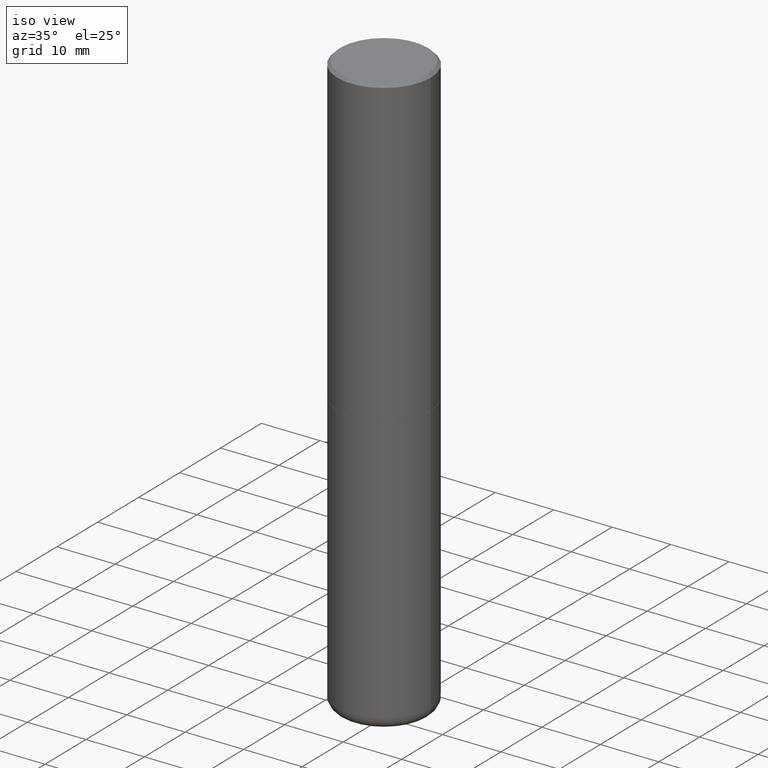
[diagram: clean part render]
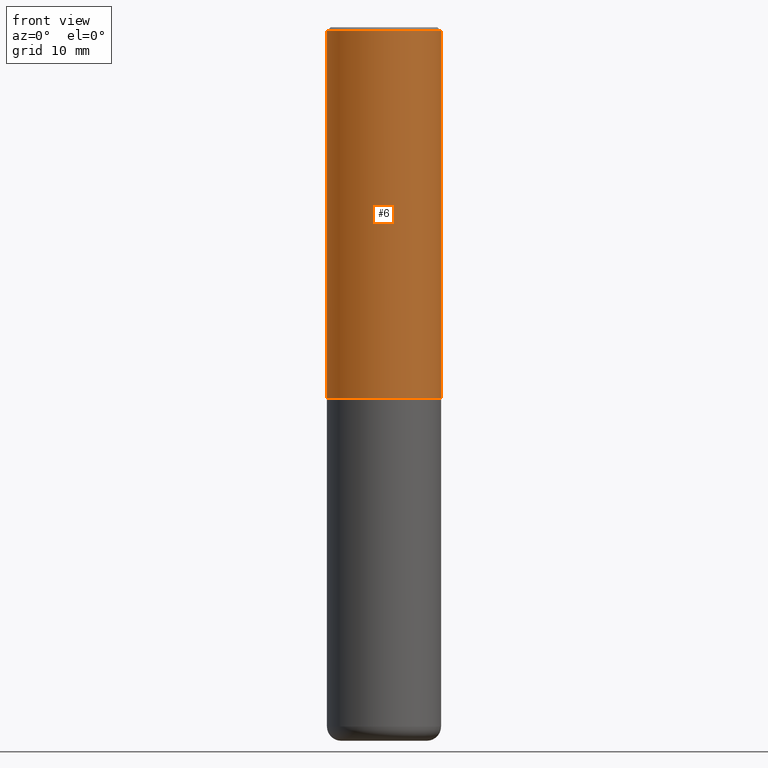
[diagram: tour spotlight — one face highlighted and labeled with its STEP entity id]
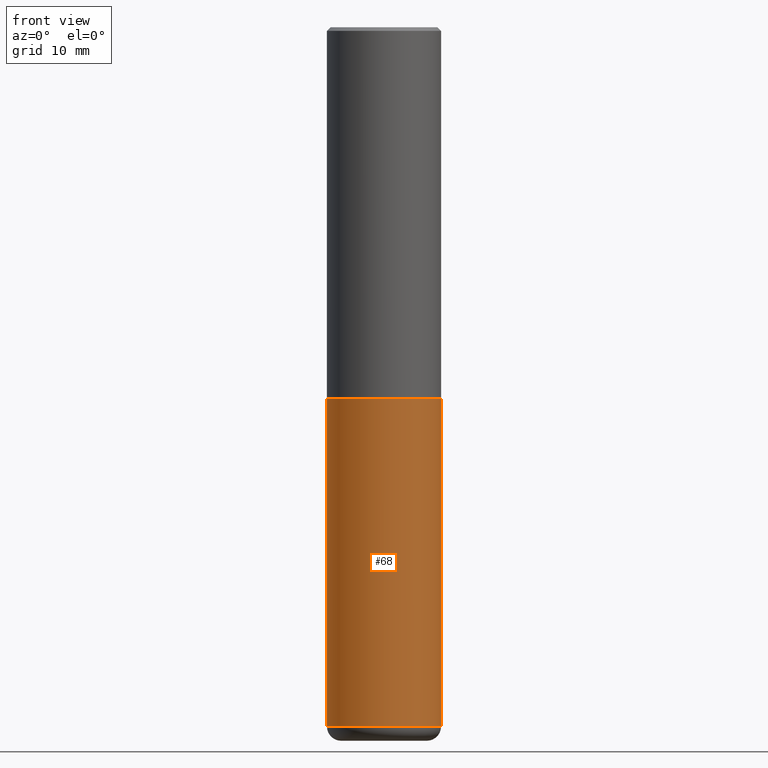
[diagram: tour spotlight — one face highlighted and labeled with its STEP entity id]
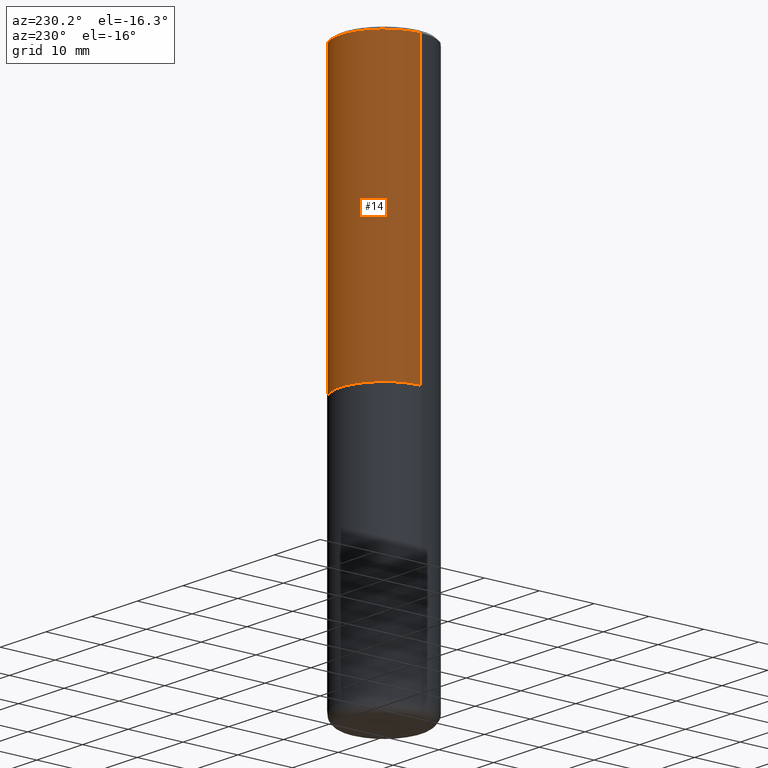
[diagram: tour spotlight — one face highlighted and labeled with its STEP entity id]
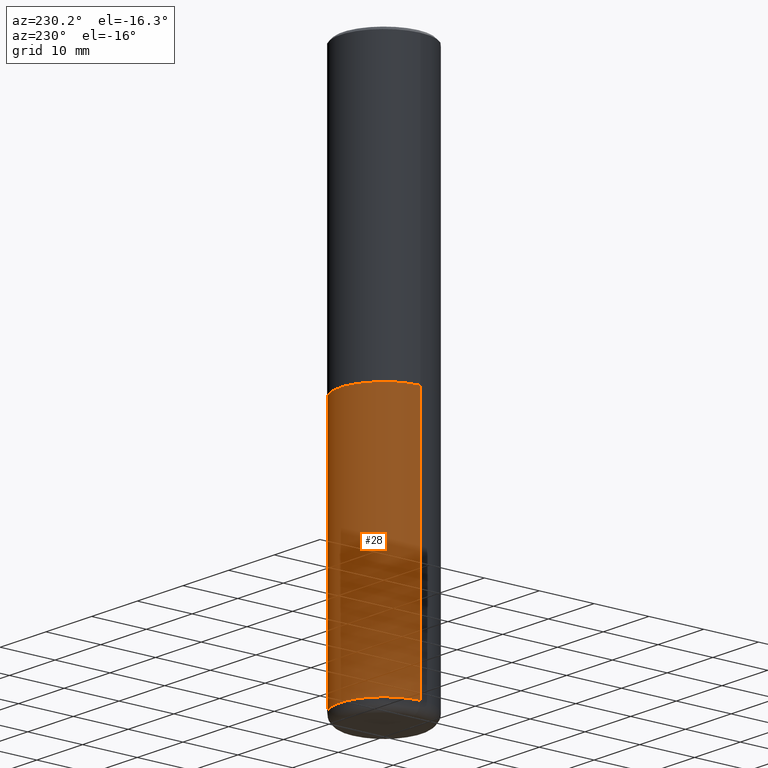
[diagram: tour spotlight — one face highlighted and labeled with its STEP entity id]
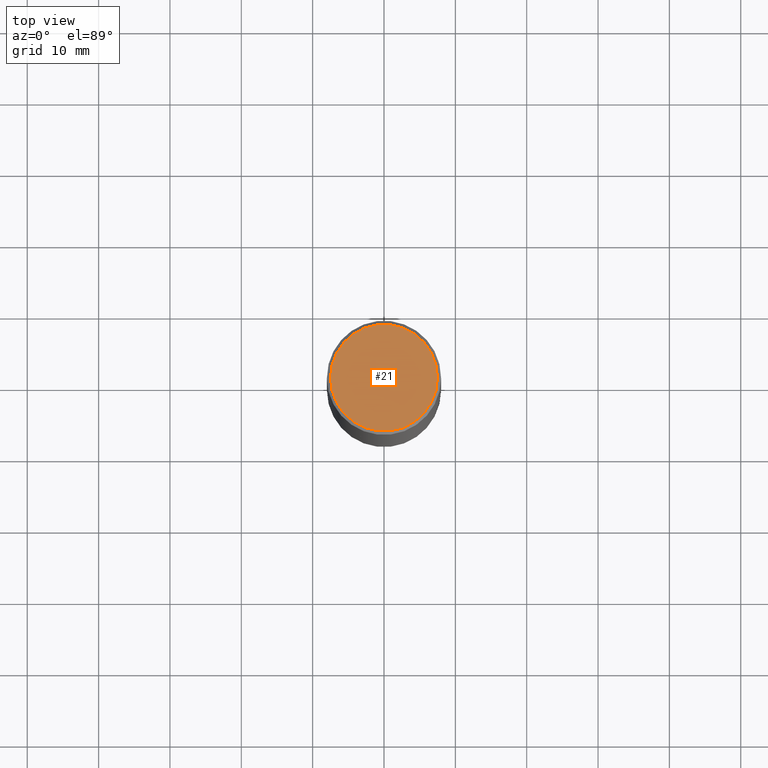
[diagram: tour spotlight — one face highlighted and labeled with its STEP entity id]
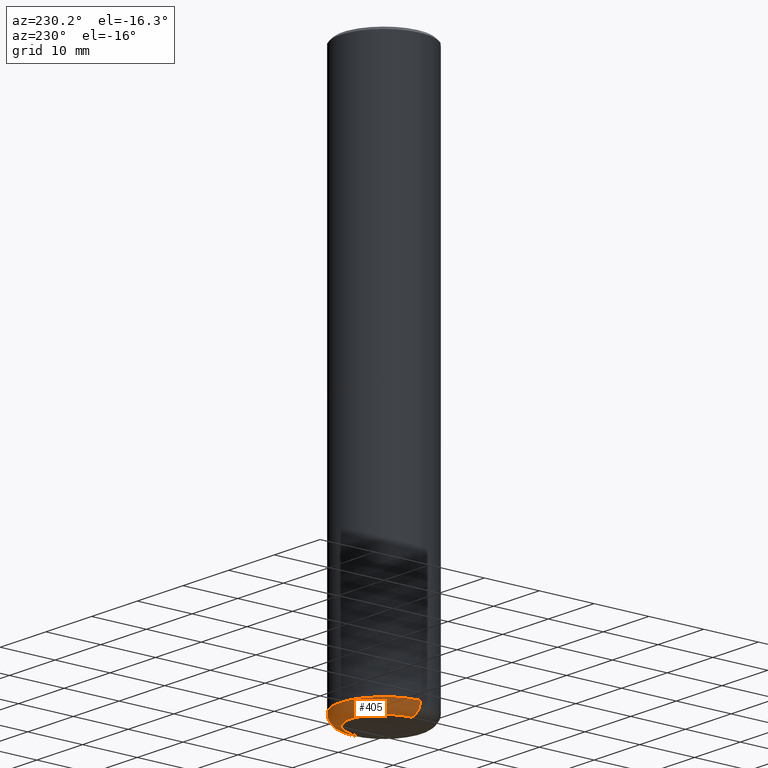
[diagram: tour spotlight — one face highlighted and labeled with its STEP entity id]
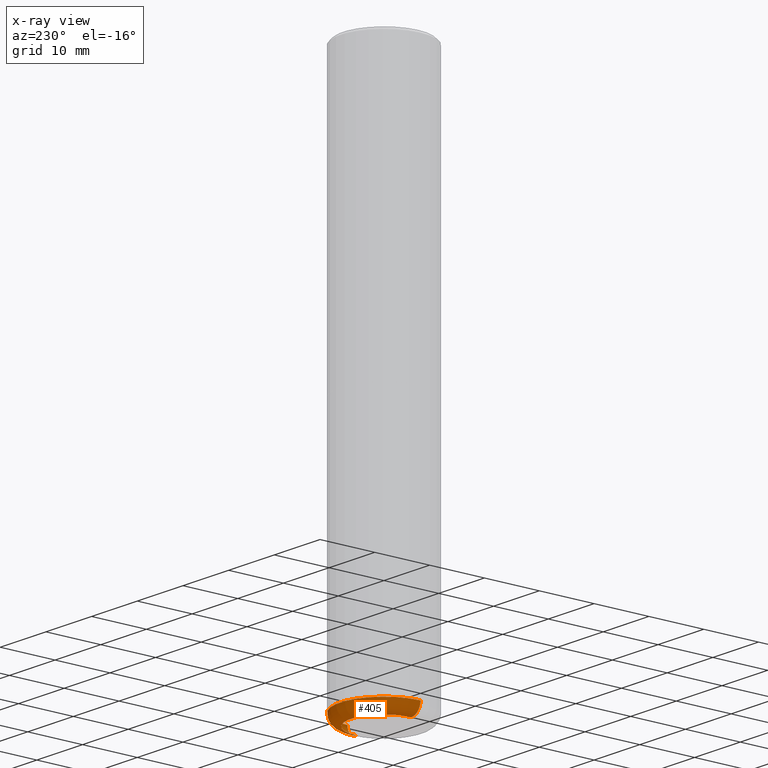
[diagram: x-ray of the same camera — body ghosted, this tour face saturated]
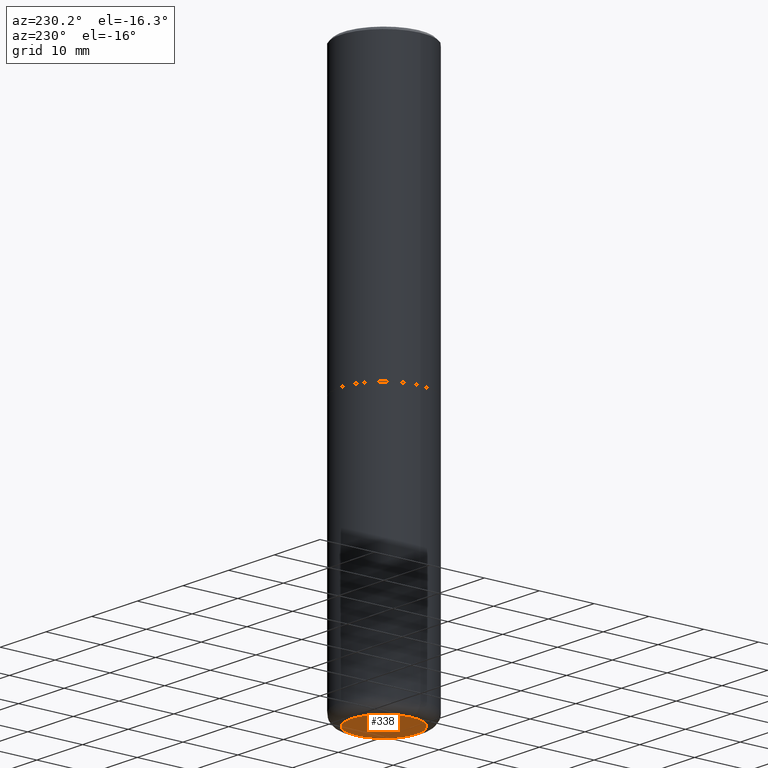
[diagram: tour spotlight — one face highlighted and labeled with its STEP entity id]
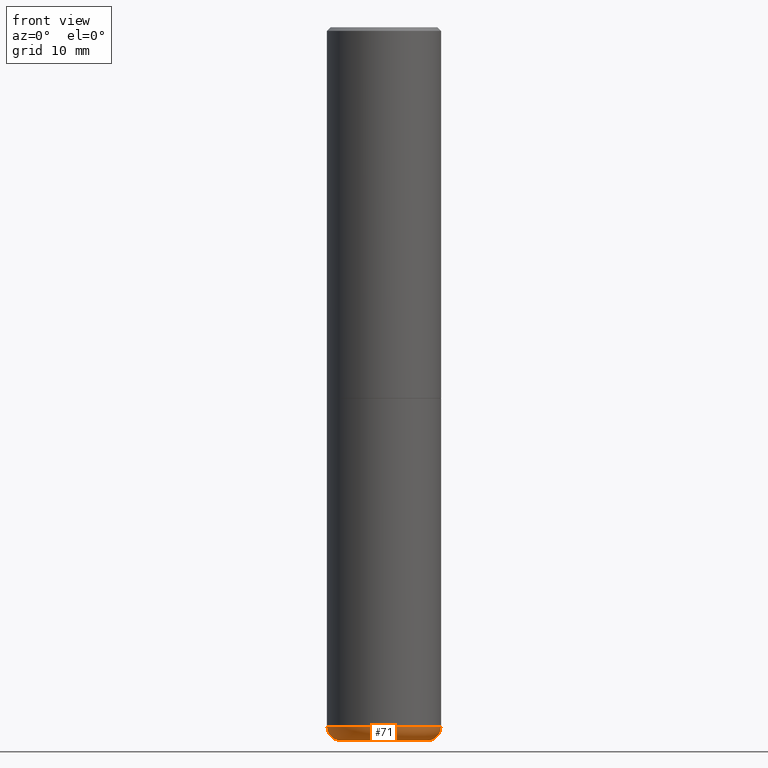
[diagram: tour spotlight — one face highlighted and labeled with its STEP entity id]
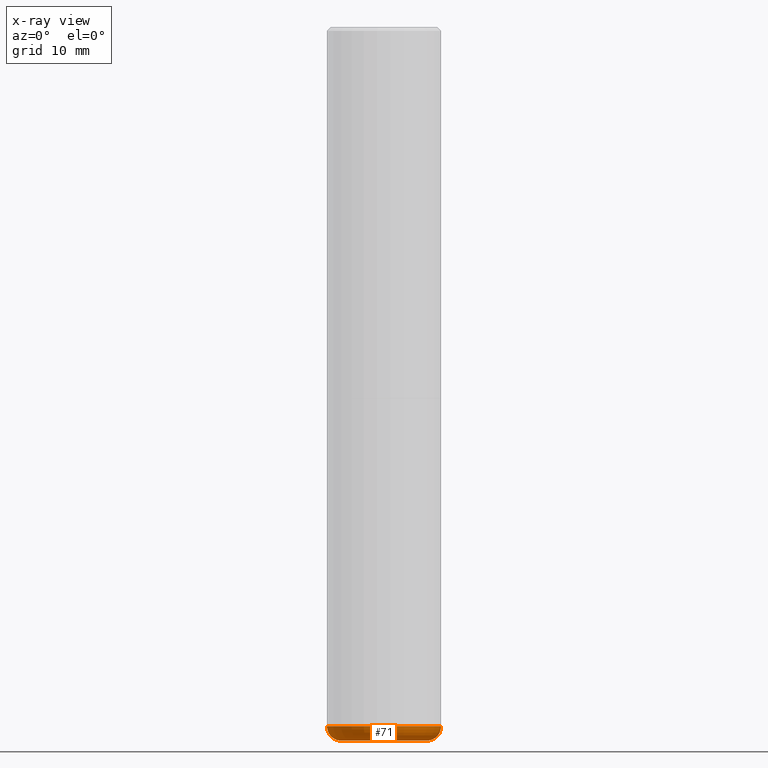
[diagram: x-ray of the same camera — body ghosted, this tour face saturated]
A machine part: a face-by-face anatomy tour. The part has 14 B-rep faces; the first image is the clean iso view, then the 8 largest visible faces are spotlighted one at a time (largest first), each with its STEP entity span.

Face 1 — front view, entity #6. In plain terms, the highlighted cylindrical surface (partial cylindrical patch) has radius 7.9997 mm, axis along (-0, 0, 1).
Definition (entity closure, byte-faithful):
#6 = ADVANCED_FACE ( 'NONE', ( #414 ), #221, .T. ) ;
#29 = CARTESIAN_POINT ( 'NONE',  ( 5.003918271216025517E-29, -7.144269115540843617E-15, -2.046199999999999797 ) ) ;
#32 = VERTEX_POINT ( 'NONE', #225 ) ;
#40 = DIRECTION ( 'NONE',  ( -2.445468806185136597E-29, 3.491481338843145583E-15, 1.000000000000000000 ) ) ;
#47 = CARTESIAN_POINT ( 'NONE',  ( -0.3149500000000001743, 2.237854346276436774E-15, -1.549218606675783237E-29 ) ) ;
#54 = VECTOR ( 'NONE', #357, 39.37007874015748143 ) ;
#60 = AXIS2_PLACEMENT_3D ( 'NONE', #93, #247, #89 ) ;
#62 = CARTESIAN_POINT ( 'NONE',  ( 0.3149499999999999522, -2.230543471175006661E-15, -0.02000000000000006981 ) ) ;
#79 = EDGE_CURVE ( 'NONE', #133, #217, #260, .T. ) ;
#89 = DIRECTION ( 'NONE',  ( 1.000000000000000000, -6.982962677686265922E-15, 4.876176775795935232E-29 ) ) ;
#93 = CARTESIAN_POINT ( 'NONE',  ( 0.000000000000000000, 0.000000000000000000, 0.000000000000000000 ) ) ;
#102 = VECTOR ( 'NONE', #359, 39.37007874015748143 ) ;
#106 = CARTESIAN_POINT ( 'NONE',  ( -0.3149499999999999522, 2.129454468560426178E-15, -0.02000000000000006981 ) ) ;
#133 = VERTEX_POINT ( 'NONE', #168 ) ;
#136 = CARTESIAN_POINT ( 'NONE',  ( 0.3149500000000001743, -2.199284095337290660E-15, 1.535751875536930690E-29 ) ) ;
#147 = CIRCLE ( 'NONE', #371, 0.3149499999999999522 ) ;
#149 = EDGE_CURVE ( 'NONE', #32, #200, #327, .T. ) ;
#168 = CARTESIAN_POINT ( 'NONE',  ( 0.3149500000000002853, -9.343553210878135066E-15, -2.046199999999999797 ) ) ;
#200 = VERTEX_POINT ( 'NONE', #106 ) ;
#207 = ORIENTED_EDGE ( 'NONE', *, *, #273, .T. ) ;
#209 = DIRECTION ( 'NONE',  ( 1.000000000000000000, -6.982962677686266711E-15, 0.000000000000000000 ) ) ;
#217 = VERTEX_POINT ( 'NONE', #62 ) ;
#221 = CYLINDRICAL_SURFACE ( 'NONE', #60, 0.3149500000000001743 ) ;
#223 = ORIENTED_EDGE ( 'NONE', *, *, #79, .T. ) ;
#225 = CARTESIAN_POINT ( 'NONE',  ( -0.3149500000000002853, -1.369195024882414317E-15, -2.046199999999999797 ) ) ;
#247 = DIRECTION ( 'NONE',  ( -2.445468806185136597E-29, 3.491481338843145583E-15, 1.000000000000000000 ) ) ;
#260 = LINE ( 'NONE', #136, #102 ) ;
#273 = EDGE_CURVE ( 'NONE', #32, #133, #407, .T. ) ;
#284 = ORIENTED_EDGE ( 'NONE', *, *, #149, .F. ) ;
#319 = DIRECTION ( 'NONE',  ( 1.000000000000000000, -6.982962677686267499E-15, 0.000000000000000000 ) ) ;
#327 = LINE ( 'NONE', #47, #54 ) ;
#333 = DIRECTION ( 'NONE',  ( -2.445468806185136597E-29, 3.491481338843145583E-15, 1.000000000000000000 ) ) ;
#337 = AXIS2_PLACEMENT_3D ( 'NONE', #29, #40, #319 ) ;
#357 = DIRECTION ( 'NONE',  ( -2.445468806185136877E-29, 3.491481338843145188E-15, 1.000000000000000000 ) ) ;
#359 = DIRECTION ( 'NONE',  ( -2.445468806185136877E-29, 3.491481338843145188E-15, 1.000000000000000000 ) ) ;
#360 = CARTESIAN_POINT ( 'NONE',  ( 4.890937612370289799E-31, -6.982962677686315028E-17, -0.02000000000000006981 ) ) ;
#369 = EDGE_LOOP ( 'NONE', ( #284, #207, #223, #375 ) ) ;
#371 = AXIS2_PLACEMENT_3D ( 'NONE', #360, #333, #209 ) ;
#375 = ORIENTED_EDGE ( 'NONE', *, *, #412, .F. ) ;
#407 = CIRCLE ( 'NONE', #337, 0.3149500000000002853 ) ;
#412 = EDGE_CURVE ( 'NONE', #200, #217, #147, .T. ) ;
#414 = FACE_OUTER_BOUND ( 'NONE', #369, .T. ) ;

Face 2 — front view, entity #68. In plain terms, the highlighted cylindrical surface (partial cylindrical patch) has radius 7.9997 mm, axis along (-0, 0, 1).
Definition (entity closure, byte-faithful):
#4 = CARTESIAN_POINT ( 'NONE',  ( 0.3149500000000000077, -2.199284095337289871E-15, 1.535751875536930130E-29 ) ) ;
#13 = DIRECTION ( 'NONE',  ( 1.000000000000000000, -6.982962677686266711E-15, 4.876176775795936353E-29 ) ) ;
#30 = ORIENTED_EDGE ( 'NONE', *, *, #205, .F. ) ;
#38 = CARTESIAN_POINT ( 'NONE',  ( 0.3149500000000000077, -9.347044692216978073E-15, -2.047199999999999687 ) ) ;
#43 = DIRECTION ( 'NONE',  ( 1.000000000000000000, -6.982962677686269866E-15, 0.000000000000000000 ) ) ;
#68 = ADVANCED_FACE ( 'NONE', ( #201 ), #143, .T. ) ;
#91 = EDGE_CURVE ( 'NONE', #408, #154, #387, .T. ) ;
#108 = ORIENTED_EDGE ( 'NONE', *, *, #91, .F. ) ;
#116 = VECTOR ( 'NONE', #341, 39.37007874015748143 ) ;
#143 = CYLINDRICAL_SURFACE ( 'NONE', #334, 0.3149500000000000077 ) ;
#154 = VERTEX_POINT ( 'NONE', #38 ) ;
#156 = CARTESIAN_POINT ( 'NONE',  ( -0.3149500000000000077, 2.237854346276435590E-15, -1.549218606675782676E-29 ) ) ;
#167 = DIRECTION ( 'NONE',  ( -2.445468806185136877E-29, 3.491481338843145188E-15, 1.000000000000000000 ) ) ;
#171 = CARTESIAN_POINT ( 'NONE',  ( 9.435352294904112142E-29, -1.347118244965850850E-14, -3.858300000000000285 ) ) ;
#172 = EDGE_CURVE ( 'NONE', #255, #214, #184, .T. ) ;
#175 = CARTESIAN_POINT ( 'NONE',  ( 0.000000000000000000, 0.000000000000000000, 0.000000000000000000 ) ) ;
#183 = ORIENTED_EDGE ( 'NONE', *, *, #172, .T. ) ;
#184 = CIRCLE ( 'NONE', #302, 0.3149500000000000077 ) ;
#201 = FACE_OUTER_BOUND ( 'NONE', #275, .T. ) ;
#205 = EDGE_CURVE ( 'NONE', #255, #408, #283, .T. ) ;
#214 = VERTEX_POINT ( 'NONE', #277 ) ;
#239 = VECTOR ( 'NONE', #167, 39.37007874015748143 ) ;
#243 = CARTESIAN_POINT ( 'NONE',  ( -0.3149500000000001743, -1.123332810338207409E-14, -3.858300000000000285 ) ) ;
#255 = VERTEX_POINT ( 'NONE', #243 ) ;
#262 = DIRECTION ( 'NONE',  ( -2.445468806185136597E-29, 3.491481338843145583E-15, 1.000000000000000000 ) ) ;
#269 = EDGE_CURVE ( 'NONE', #214, #154, #353, .T. ) ;
#275 = EDGE_LOOP ( 'NONE', ( #30, #183, #356, #108 ) ) ;
#277 = CARTESIAN_POINT ( 'NONE',  ( 0.3149500000000001743, -1.567046654499579837E-14, -3.858300000000000285 ) ) ;
#283 = LINE ( 'NONE', #156, #116 ) ;
#289 = DIRECTION ( 'NONE',  ( -2.445468806185136597E-29, 3.491481338843145583E-15, 1.000000000000000000 ) ) ;
#293 = DIRECTION ( 'NONE',  ( -2.445468806185136597E-29, 3.491481338843145583E-15, 1.000000000000000000 ) ) ;
#298 = AXIS2_PLACEMENT_3D ( 'NONE', #323, #262, #43 ) ;
#302 = AXIS2_PLACEMENT_3D ( 'NONE', #171, #289, #392 ) ;
#323 = CARTESIAN_POINT ( 'NONE',  ( 5.006363740022211120E-29, -7.147760596879686624E-15, -2.047199999999999687 ) ) ;
#334 = AXIS2_PLACEMENT_3D ( 'NONE', #175, #293, #13 ) ;
#341 = DIRECTION ( 'NONE',  ( -2.445468806185136877E-29, 3.491481338843145188E-15, 1.000000000000000000 ) ) ;
#353 = LINE ( 'NONE', #4, #239 ) ;
#356 = ORIENTED_EDGE ( 'NONE', *, *, #269, .T. ) ;
#387 = CIRCLE ( 'NONE', #298, 0.3149500000000000077 ) ;
#392 = DIRECTION ( 'NONE',  ( 1.000000000000000000, -6.982962677686263555E-15, 0.000000000000000000 ) ) ;
#408 = VERTEX_POINT ( 'NONE', #409 ) ;
#409 = CARTESIAN_POINT ( 'NONE',  ( -0.3149500000000000077, -8.071617176992661576E-15, -2.047199999999999687 ) ) ;

Face 3 — auxiliary view, entity #14. In plain terms, the highlighted cylindrical surface (partial cylindrical patch) has radius 7.9997 mm, axis along (-0, 0, 1).
Definition (entity closure, byte-faithful):
#10 = DIRECTION ( 'NONE',  ( -2.445468806185136597E-29, 3.491481338843145583E-15, 1.000000000000000000 ) ) ;
#14 = ADVANCED_FACE ( 'NONE', ( #158 ), #312, .T. ) ;
#23 = ORIENTED_EDGE ( 'NONE', *, *, #146, .T. ) ;
#25 = CIRCLE ( 'NONE', #173, 0.3149500000000002853 ) ;
#32 = VERTEX_POINT ( 'NONE', #225 ) ;
#47 = CARTESIAN_POINT ( 'NONE',  ( -0.3149500000000001743, 2.237854346276436774E-15, -1.549218606675783237E-29 ) ) ;
#54 = VECTOR ( 'NONE', #357, 39.37007874015748143 ) ;
#55 = EDGE_CURVE ( 'NONE', #217, #200, #257, .T. ) ;
#58 = EDGE_LOOP ( 'NONE', ( #23, #364, #63, #340 ) ) ;
#62 = CARTESIAN_POINT ( 'NONE',  ( 0.3149499999999999522, -2.230543471175006661E-15, -0.02000000000000006981 ) ) ;
#63 = ORIENTED_EDGE ( 'NONE', *, *, #55, .F. ) ;
#75 = DIRECTION ( 'NONE',  ( -2.445468806185136597E-29, 3.491481338843145583E-15, 1.000000000000000000 ) ) ;
#79 = EDGE_CURVE ( 'NONE', #133, #217, #260, .T. ) ;
#101 = DIRECTION ( 'NONE',  ( 1.000000000000000000, -6.982962677686266711E-15, 0.000000000000000000 ) ) ;
#102 = VECTOR ( 'NONE', #359, 39.37007874015748143 ) ;
#106 = CARTESIAN_POINT ( 'NONE',  ( -0.3149499999999999522, 2.129454468560426178E-15, -0.02000000000000006981 ) ) ;
#120 = CARTESIAN_POINT ( 'NONE',  ( 0.000000000000000000, 0.000000000000000000, 0.000000000000000000 ) ) ;
#127 = AXIS2_PLACEMENT_3D ( 'NONE', #196, #244, #101 ) ;
#133 = VERTEX_POINT ( 'NONE', #168 ) ;
#136 = CARTESIAN_POINT ( 'NONE',  ( 0.3149500000000001743, -2.199284095337290660E-15, 1.535751875536930690E-29 ) ) ;
#141 = DIRECTION ( 'NONE',  ( 1.000000000000000000, -6.982962677686267499E-15, 0.000000000000000000 ) ) ;
#146 = EDGE_CURVE ( 'NONE', #133, #32, #25, .T. ) ;
#149 = EDGE_CURVE ( 'NONE', #32, #200, #327, .T. ) ;
#158 = FACE_OUTER_BOUND ( 'NONE', #58, .T. ) ;
#168 = CARTESIAN_POINT ( 'NONE',  ( 0.3149500000000002853, -9.343553210878135066E-15, -2.046199999999999797 ) ) ;
#173 = AXIS2_PLACEMENT_3D ( 'NONE', #204, #10, #141 ) ;
#196 = CARTESIAN_POINT ( 'NONE',  ( 4.890937612370289799E-31, -6.982962677686315028E-17, -0.02000000000000006981 ) ) ;
#200 = VERTEX_POINT ( 'NONE', #106 ) ;
#204 = CARTESIAN_POINT ( 'NONE',  ( 5.003918271216025517E-29, -7.144269115540843617E-15, -2.046199999999999797 ) ) ;
#217 = VERTEX_POINT ( 'NONE', #62 ) ;
#225 = CARTESIAN_POINT ( 'NONE',  ( -0.3149500000000002853, -1.369195024882414317E-15, -2.046199999999999797 ) ) ;
#244 = DIRECTION ( 'NONE',  ( -2.445468806185136597E-29, 3.491481338843145583E-15, 1.000000000000000000 ) ) ;
#257 = CIRCLE ( 'NONE', #127, 0.3149499999999999522 ) ;
#260 = LINE ( 'NONE', #136, #102 ) ;
#312 = CYLINDRICAL_SURFACE ( 'NONE', #400, 0.3149500000000001743 ) ;
#327 = LINE ( 'NONE', #47, #54 ) ;
#340 = ORIENTED_EDGE ( 'NONE', *, *, #79, .F. ) ;
#357 = DIRECTION ( 'NONE',  ( -2.445468806185136877E-29, 3.491481338843145188E-15, 1.000000000000000000 ) ) ;
#359 = DIRECTION ( 'NONE',  ( -2.445468806185136877E-29, 3.491481338843145188E-15, 1.000000000000000000 ) ) ;
#364 = ORIENTED_EDGE ( 'NONE', *, *, #149, .T. ) ;
#382 = DIRECTION ( 'NONE',  ( 1.000000000000000000, -6.982962677686265922E-15, 4.876176775795935232E-29 ) ) ;
#400 = AXIS2_PLACEMENT_3D ( 'NONE', #120, #75, #382 ) ;

Face 4 — auxiliary view, entity #28. In plain terms, the highlighted cylindrical surface (partial cylindrical patch) has radius 7.9997 mm, axis along (-0, 0, 1).
Definition (entity closure, byte-faithful):
#4 = CARTESIAN_POINT ( 'NONE',  ( 0.3149500000000000077, -2.199284095337289871E-15, 1.535751875536930130E-29 ) ) ;
#24 = AXIS2_PLACEMENT_3D ( 'NONE', #282, #306, #345 ) ;
#28 = ADVANCED_FACE ( 'NONE', ( #192 ), #166, .T. ) ;
#31 = DIRECTION ( 'NONE',  ( 1.000000000000000000, -6.982962677686269866E-15, 0.000000000000000000 ) ) ;
#38 = CARTESIAN_POINT ( 'NONE',  ( 0.3149500000000000077, -9.347044692216978073E-15, -2.047199999999999687 ) ) ;
#46 = ORIENTED_EDGE ( 'NONE', *, *, #205, .T. ) ;
#52 = EDGE_CURVE ( 'NONE', #214, #255, #179, .T. ) ;
#59 = DIRECTION ( 'NONE',  ( 1.000000000000000000, -6.982962677686263555E-15, 0.000000000000000000 ) ) ;
#69 = DIRECTION ( 'NONE',  ( -2.445468806185136597E-29, 3.491481338843145583E-15, 1.000000000000000000 ) ) ;
#87 = ORIENTED_EDGE ( 'NONE', *, *, #236, .F. ) ;
#116 = VECTOR ( 'NONE', #341, 39.37007874015748143 ) ;
#124 = DIRECTION ( 'NONE',  ( -2.445468806185136597E-29, 3.491481338843145583E-15, 1.000000000000000000 ) ) ;
#139 = CIRCLE ( 'NONE', #367, 0.3149500000000000077 ) ;
#154 = VERTEX_POINT ( 'NONE', #38 ) ;
#156 = CARTESIAN_POINT ( 'NONE',  ( -0.3149500000000000077, 2.237854346276435590E-15, -1.549218606675782676E-29 ) ) ;
#166 = CYLINDRICAL_SURFACE ( 'NONE', #24, 0.3149500000000000077 ) ;
#167 = DIRECTION ( 'NONE',  ( -2.445468806185136877E-29, 3.491481338843145188E-15, 1.000000000000000000 ) ) ;
#179 = CIRCLE ( 'NONE', #233, 0.3149500000000000077 ) ;
#186 = CARTESIAN_POINT ( 'NONE',  ( 5.006363740022211120E-29, -7.147760596879686624E-15, -2.047199999999999687 ) ) ;
#192 = FACE_OUTER_BOUND ( 'NONE', #242, .T. ) ;
#205 = EDGE_CURVE ( 'NONE', #255, #408, #283, .T. ) ;
#214 = VERTEX_POINT ( 'NONE', #277 ) ;
#229 = ORIENTED_EDGE ( 'NONE', *, *, #269, .F. ) ;
#233 = AXIS2_PLACEMENT_3D ( 'NONE', #285, #124, #59 ) ;
#236 = EDGE_CURVE ( 'NONE', #154, #408, #139, .T. ) ;
#239 = VECTOR ( 'NONE', #167, 39.37007874015748143 ) ;
#242 = EDGE_LOOP ( 'NONE', ( #276, #46, #87, #229 ) ) ;
#243 = CARTESIAN_POINT ( 'NONE',  ( -0.3149500000000001743, -1.123332810338207409E-14, -3.858300000000000285 ) ) ;
#255 = VERTEX_POINT ( 'NONE', #243 ) ;
#269 = EDGE_CURVE ( 'NONE', #214, #154, #353, .T. ) ;
#276 = ORIENTED_EDGE ( 'NONE', *, *, #52, .T. ) ;
#277 = CARTESIAN_POINT ( 'NONE',  ( 0.3149500000000001743, -1.567046654499579837E-14, -3.858300000000000285 ) ) ;
#282 = CARTESIAN_POINT ( 'NONE',  ( 0.000000000000000000, 0.000000000000000000, 0.000000000000000000 ) ) ;
#283 = LINE ( 'NONE', #156, #116 ) ;
#285 = CARTESIAN_POINT ( 'NONE',  ( 9.435352294904112142E-29, -1.347118244965850850E-14, -3.858300000000000285 ) ) ;
#306 = DIRECTION ( 'NONE',  ( -2.445468806185136597E-29, 3.491481338843145583E-15, 1.000000000000000000 ) ) ;
#341 = DIRECTION ( 'NONE',  ( -2.445468806185136877E-29, 3.491481338843145188E-15, 1.000000000000000000 ) ) ;
#345 = DIRECTION ( 'NONE',  ( 1.000000000000000000, -6.982962677686266711E-15, 4.876176775795936353E-29 ) ) ;
#353 = LINE ( 'NONE', #4, #239 ) ;
#367 = AXIS2_PLACEMENT_3D ( 'NONE', #186, #69, #31 ) ;
#408 = VERTEX_POINT ( 'NONE', #409 ) ;
#409 = CARTESIAN_POINT ( 'NONE',  ( -0.3149500000000000077, -8.071617176992661576E-15, -2.047199999999999687 ) ) ;

Face 5 — top view, entity #21. In plain terms, the highlighted planar face has unit normal (0, -0, -1).
Definition (entity closure, byte-faithful):
#3 = FACE_OUTER_BOUND ( 'NONE', #336, .T. ) ;
#21 = ADVANCED_FACE ( 'NONE', ( #3 ), #411, .F. ) ;
#27 = DIRECTION ( 'NONE',  ( -2.445468806185136597E-29, 3.491481338843145583E-15, 1.000000000000000000 ) ) ;
#33 = CARTESIAN_POINT ( 'NONE',  ( 2.059624841783562486E-15, 0.2949499999999997679, -9.380394023546260134E-16 ) ) ;
#37 = EDGE_CURVE ( 'NONE', #381, #351, #315, .T. ) ;
#70 = DIRECTION ( 'NONE',  ( 2.438088387897960049E-29, -3.491481338843145188E-15, -1.000000000000000000 ) ) ;
#96 = ORIENTED_EDGE ( 'NONE', *, *, #37, .T. ) ;
#125 = CARTESIAN_POINT ( 'NONE',  ( -4.488561081641444621E-45, 6.408475632635922878E-31, 1.835460370743176819E-16 ) ) ;
#132 = CARTESIAN_POINT ( 'NONE',  ( 0.2949499999999997679, -2.127023677808858891E-15, 1.835460370743323251E-16 ) ) ;
#153 = AXIS2_PLACEMENT_3D ( 'NONE', #385, #27, #317 ) ;
#160 = ORIENTED_EDGE ( 'NONE', *, *, #272, .T. ) ;
#161 = DIRECTION ( 'NONE',  ( -1.000000000000000000, 6.982962677686265922E-15, -4.876176775795935793E-29 ) ) ;
#162 = CIRCLE ( 'NONE', #342, 0.2949499999999997679 ) ;
#265 = AXIS2_PLACEMENT_3D ( 'NONE', #33, #70, #161 ) ;
#272 = EDGE_CURVE ( 'NONE', #351, #381, #162, .T. ) ;
#279 = CARTESIAN_POINT ( 'NONE',  ( -0.2949499999999997679, 2.094539655171994924E-15, 1.835460370743031619E-16 ) ) ;
#314 = DIRECTION ( 'NONE',  ( 1.000000000000000000, -6.982962677686265922E-15, 4.874125435057325556E-29 ) ) ;
#315 = CIRCLE ( 'NONE', #153, 0.2949499999999997679 ) ;
#317 = DIRECTION ( 'NONE',  ( 1.000000000000000000, -6.982962677686265922E-15, 4.874125435057325556E-29 ) ) ;
#321 = DIRECTION ( 'NONE',  ( -2.445468806185136597E-29, 3.491481338843145583E-15, 1.000000000000000000 ) ) ;
#336 = EDGE_LOOP ( 'NONE', ( #160, #96 ) ) ;
#342 = AXIS2_PLACEMENT_3D ( 'NONE', #125, #321, #314 ) ;
#351 = VERTEX_POINT ( 'NONE', #279 ) ;
#381 = VERTEX_POINT ( 'NONE', #132 ) ;
#385 = CARTESIAN_POINT ( 'NONE',  ( -4.488561081641444621E-45, 6.408475632635922878E-31, 1.835460370743176819E-16 ) ) ;
#411 = PLANE ( 'NONE',  #265 ) ;

Face 6 — auxiliary view, entity #405. An x-ray twin of the same camera follows (body ghosted, this face saturated) — the face is partly hidden behind the body. In plain terms, the highlighted toroidal blend (fillet) surface has major radius 6.0008 mm and minor (blend) radius 1.999 mm.
Definition (entity closure, byte-faithful):
#2 = EDGE_LOOP ( 'NONE', ( #113, #131, #57, #331 ) ) ;
#9 = AXIS2_PLACEMENT_3D ( 'NONE', #308, #129, #286 ) ;
#16 = VERTEX_POINT ( 'NONE', #97 ) ;
#19 = AXIS2_PLACEMENT_3D ( 'NONE', #378, #218, #67 ) ;
#42 = CIRCLE ( 'NONE', #94, 0.07870000000000021423 ) ;
#52 = EDGE_CURVE ( 'NONE', #214, #255, #179, .T. ) ;
#56 = EDGE_CURVE ( 'NONE', #377, #16, #362, .T. ) ;
#57 = ORIENTED_EDGE ( 'NONE', *, *, #52, .F. ) ;
#59 = DIRECTION ( 'NONE',  ( 1.000000000000000000, -6.982962677686263555E-15, 0.000000000000000000 ) ) ;
#67 = DIRECTION ( 'NONE',  ( 1.000000000000000000, -6.982962677686269866E-15, 0.000000000000000000 ) ) ;
#77 = FACE_OUTER_BOUND ( 'NONE', #2, .T. ) ;
#94 = AXIS2_PLACEMENT_3D ( 'NONE', #383, #310, #222 ) ;
#97 = CARTESIAN_POINT ( 'NONE',  ( -0.2362500000000000155, -1.165031646058715016E-14, -3.937000000000000721 ) ) ;
#98 = CARTESIAN_POINT ( 'NONE',  ( 0.2362500000000000155, -1.539568696362884818E-14, -3.937000000000000721 ) ) ;
#113 = ORIENTED_EDGE ( 'NONE', *, *, #56, .T. ) ;
#124 = DIRECTION ( 'NONE',  ( -2.445468806185136597E-29, 3.491481338843145583E-15, 1.000000000000000000 ) ) ;
#129 = DIRECTION ( 'NONE',  ( -6.982962677686266711E-15, -1.000000000000000000, 3.491481338843145583E-15 ) ) ;
#131 = ORIENTED_EDGE ( 'NONE', *, *, #349, .T. ) ;
#140 = DIRECTION ( 'NONE',  ( 1.000000000000000000, -6.982962677686265133E-15, 4.883557194083112901E-29 ) ) ;
#151 = AXIS2_PLACEMENT_3D ( 'NONE', #176, #329, #140 ) ;
#176 = CARTESIAN_POINT ( 'NONE',  ( 9.435352294904112142E-29, -1.347118244965850850E-14, -3.858300000000000285 ) ) ;
#179 = CIRCLE ( 'NONE', #233, 0.3149500000000000077 ) ;
#214 = VERTEX_POINT ( 'NONE', #277 ) ;
#218 = DIRECTION ( 'NONE',  ( -2.445468806185136597E-29, 3.491481338843145583E-15, 1.000000000000000000 ) ) ;
#222 = DIRECTION ( 'NONE',  ( -1.000000000000000000, 7.105427357600997914E-15, 0.000000000000000000 ) ) ;
#233 = AXIS2_PLACEMENT_3D ( 'NONE', #285, #124, #59 ) ;
#240 = CIRCLE ( 'NONE', #9, 0.07870000000000021423 ) ;
#241 = EDGE_CURVE ( 'NONE', #377, #214, #240, .T. ) ;
#243 = CARTESIAN_POINT ( 'NONE',  ( -0.3149500000000001743, -1.123332810338207409E-14, -3.858300000000000285 ) ) ;
#255 = VERTEX_POINT ( 'NONE', #243 ) ;
#277 = CARTESIAN_POINT ( 'NONE',  ( 0.3149500000000001743, -1.567046654499579837E-14, -3.858300000000000285 ) ) ;
#285 = CARTESIAN_POINT ( 'NONE',  ( 9.435352294904112142E-29, -1.347118244965850850E-14, -3.858300000000000285 ) ) ;
#286 = DIRECTION ( 'NONE',  ( 1.000000000000000000, -6.982962677686276177E-15, 0.000000000000000000 ) ) ;
#308 = CARTESIAN_POINT ( 'NONE',  ( 0.2362500000000000155, -1.512090738226188853E-14, -3.858300000000000285 ) ) ;
#310 = DIRECTION ( 'NONE',  ( 7.105427357601001859E-15, 1.000000000000000000, -3.491481338843145583E-15 ) ) ;
#324 = TOROIDAL_SURFACE ( 'NONE', #151, 0.2362500000000000155, 0.07870000000000022811 ) ;
#329 = DIRECTION ( 'NONE',  ( -2.445468806185136597E-29, 3.491481338843145583E-15, 1.000000000000000000 ) ) ;
#331 = ORIENTED_EDGE ( 'NONE', *, *, #241, .F. ) ;
#349 = EDGE_CURVE ( 'NONE', #16, #255, #42, .T. ) ;
#362 = CIRCLE ( 'NONE', #19, 0.2362500000000000155 ) ;
#377 = VERTEX_POINT ( 'NONE', #98 ) ;
#378 = CARTESIAN_POINT ( 'NONE',  ( 9.627810689950884790E-29, -1.374596203102546657E-14, -3.937000000000000721 ) ) ;
#383 = CARTESIAN_POINT ( 'NONE',  ( -0.2362500000000000155, -1.179252523642527130E-14, -3.858300000000000285 ) ) ;
#405 = ADVANCED_FACE ( 'NONE', ( #77 ), #324, .T. ) ;

Face 7 — auxiliary view, entity #338. In plain terms, the highlighted planar face has unit normal (0, -0, -1).
Definition (entity closure, byte-faithful):
#1 = DIRECTION ( 'NONE',  ( -1.000000000000000000, 6.982962677686265922E-15, -4.876176775795935793E-29 ) ) ;
#5 = DIRECTION ( 'NONE',  ( -2.445468806185136597E-29, 3.491481338843145583E-15, 1.000000000000000000 ) ) ;
#16 = VERTEX_POINT ( 'NONE', #97 ) ;
#18 = CIRCLE ( 'NONE', #210, 0.2362500000000000155 ) ;
#19 = AXIS2_PLACEMENT_3D ( 'NONE', #378, #218, #67 ) ;
#56 = EDGE_CURVE ( 'NONE', #377, #16, #362, .T. ) ;
#67 = DIRECTION ( 'NONE',  ( 1.000000000000000000, -6.982962677686269866E-15, 0.000000000000000000 ) ) ;
#95 = PLANE ( 'NONE',  #404 ) ;
#97 = CARTESIAN_POINT ( 'NONE',  ( -0.2362500000000000155, -1.165031646058715016E-14, -3.937000000000000721 ) ) ;
#98 = CARTESIAN_POINT ( 'NONE',  ( 0.2362500000000000155, -1.539568696362884818E-14, -3.937000000000000721 ) ) ;
#104 = CARTESIAN_POINT ( 'NONE',  ( 9.627810689950884790E-29, -1.374596203102546657E-14, -3.937000000000000721 ) ) ;
#137 = EDGE_CURVE ( 'NONE', #16, #377, #18, .T. ) ;
#187 = ORIENTED_EDGE ( 'NONE', *, *, #56, .F. ) ;
#210 = AXIS2_PLACEMENT_3D ( 'NONE', #104, #5, #227 ) ;
#215 = EDGE_LOOP ( 'NONE', ( #187, #281 ) ) ;
#218 = DIRECTION ( 'NONE',  ( -2.445468806185136597E-29, 3.491481338843145583E-15, 1.000000000000000000 ) ) ;
#226 = DIRECTION ( 'NONE',  ( 2.438088387897960049E-29, -3.491481338843145188E-15, -1.000000000000000000 ) ) ;
#227 = DIRECTION ( 'NONE',  ( 1.000000000000000000, -6.982962677686269866E-15, 0.000000000000000000 ) ) ;
#249 = CARTESIAN_POINT ( 'NONE',  ( 3.269820629346959503E-29, -2.285096567213124640E-14, -3.937000000000000277 ) ) ;
#281 = ORIENTED_EDGE ( 'NONE', *, *, #137, .F. ) ;
#338 = ADVANCED_FACE ( 'NONE', ( #379 ), #95, .T. ) ;
#362 = CIRCLE ( 'NONE', #19, 0.2362500000000000155 ) ;
#377 = VERTEX_POINT ( 'NONE', #98 ) ;
#378 = CARTESIAN_POINT ( 'NONE',  ( 9.627810689950884790E-29, -1.374596203102546657E-14, -3.937000000000000721 ) ) ;
#379 = FACE_OUTER_BOUND ( 'NONE', #215, .T. ) ;
#404 = AXIS2_PLACEMENT_3D ( 'NONE', #249, #226, #1 ) ;

Face 8 — front view, entity #71. An x-ray twin of the same camera follows (body ghosted, this face saturated) — the face is partly hidden behind the body. In plain terms, the highlighted toroidal blend (fillet) surface has major radius 6.0008 mm and minor (blend) radius 1.999 mm.
Definition (entity closure, byte-faithful):
#5 = DIRECTION ( 'NONE',  ( -2.445468806185136597E-29, 3.491481338843145583E-15, 1.000000000000000000 ) ) ;
#9 = AXIS2_PLACEMENT_3D ( 'NONE', #308, #129, #286 ) ;
#16 = VERTEX_POINT ( 'NONE', #97 ) ;
#18 = CIRCLE ( 'NONE', #210, 0.2362500000000000155 ) ;
#42 = CIRCLE ( 'NONE', #94, 0.07870000000000021423 ) ;
#66 = EDGE_LOOP ( 'NONE', ( #246, #311, #391, #119 ) ) ;
#71 = ADVANCED_FACE ( 'NONE', ( #395 ), #213, .T. ) ;
#80 = DIRECTION ( 'NONE',  ( 1.000000000000000000, -6.982962677686265133E-15, 4.883557194083112901E-29 ) ) ;
#94 = AXIS2_PLACEMENT_3D ( 'NONE', #383, #310, #222 ) ;
#97 = CARTESIAN_POINT ( 'NONE',  ( -0.2362500000000000155, -1.165031646058715016E-14, -3.937000000000000721 ) ) ;
#98 = CARTESIAN_POINT ( 'NONE',  ( 0.2362500000000000155, -1.539568696362884818E-14, -3.937000000000000721 ) ) ;
#104 = CARTESIAN_POINT ( 'NONE',  ( 9.627810689950884790E-29, -1.374596203102546657E-14, -3.937000000000000721 ) ) ;
#109 = CARTESIAN_POINT ( 'NONE',  ( 9.435352294904112142E-29, -1.347118244965850850E-14, -3.858300000000000285 ) ) ;
#119 = ORIENTED_EDGE ( 'NONE', *, *, #172, .F. ) ;
#129 = DIRECTION ( 'NONE',  ( -6.982962677686266711E-15, -1.000000000000000000, 3.491481338843145583E-15 ) ) ;
#137 = EDGE_CURVE ( 'NONE', #16, #377, #18, .T. ) ;
#171 = CARTESIAN_POINT ( 'NONE',  ( 9.435352294904112142E-29, -1.347118244965850850E-14, -3.858300000000000285 ) ) ;
#172 = EDGE_CURVE ( 'NONE', #255, #214, #184, .T. ) ;
#184 = CIRCLE ( 'NONE', #302, 0.3149500000000000077 ) ;
#210 = AXIS2_PLACEMENT_3D ( 'NONE', #104, #5, #227 ) ;
#213 = TOROIDAL_SURFACE ( 'NONE', #248, 0.2362500000000000155, 0.07870000000000022811 ) ;
#214 = VERTEX_POINT ( 'NONE', #277 ) ;
#222 = DIRECTION ( 'NONE',  ( -1.000000000000000000, 7.105427357600997914E-15, 0.000000000000000000 ) ) ;
#227 = DIRECTION ( 'NONE',  ( 1.000000000000000000, -6.982962677686269866E-15, 0.000000000000000000 ) ) ;
#240 = CIRCLE ( 'NONE', #9, 0.07870000000000021423 ) ;
#241 = EDGE_CURVE ( 'NONE', #377, #214, #240, .T. ) ;
#243 = CARTESIAN_POINT ( 'NONE',  ( -0.3149500000000001743, -1.123332810338207409E-14, -3.858300000000000285 ) ) ;
#246 = ORIENTED_EDGE ( 'NONE', *, *, #349, .F. ) ;
#248 = AXIS2_PLACEMENT_3D ( 'NONE', #109, #256, #80 ) ;
#255 = VERTEX_POINT ( 'NONE', #243 ) ;
#256 = DIRECTION ( 'NONE',  ( -2.445468806185136597E-29, 3.491481338843145583E-15, 1.000000000000000000 ) ) ;
#277 = CARTESIAN_POINT ( 'NONE',  ( 0.3149500000000001743, -1.567046654499579837E-14, -3.858300000000000285 ) ) ;
#286 = DIRECTION ( 'NONE',  ( 1.000000000000000000, -6.982962677686276177E-15, 0.000000000000000000 ) ) ;
#289 = DIRECTION ( 'NONE',  ( -2.445468806185136597E-29, 3.491481338843145583E-15, 1.000000000000000000 ) ) ;
#302 = AXIS2_PLACEMENT_3D ( 'NONE', #171, #289, #392 ) ;
#308 = CARTESIAN_POINT ( 'NONE',  ( 0.2362500000000000155, -1.512090738226188853E-14, -3.858300000000000285 ) ) ;
#310 = DIRECTION ( 'NONE',  ( 7.105427357601001859E-15, 1.000000000000000000, -3.491481338843145583E-15 ) ) ;
#311 = ORIENTED_EDGE ( 'NONE', *, *, #137, .T. ) ;
#349 = EDGE_CURVE ( 'NONE', #16, #255, #42, .T. ) ;
#377 = VERTEX_POINT ( 'NONE', #98 ) ;
#383 = CARTESIAN_POINT ( 'NONE',  ( -0.2362500000000000155, -1.179252523642527130E-14, -3.858300000000000285 ) ) ;
#391 = ORIENTED_EDGE ( 'NONE', *, *, #241, .T. ) ;
#392 = DIRECTION ( 'NONE',  ( 1.000000000000000000, -6.982962677686263555E-15, 0.000000000000000000 ) ) ;
#395 = FACE_OUTER_BOUND ( 'NONE', #66, .T. ) ;